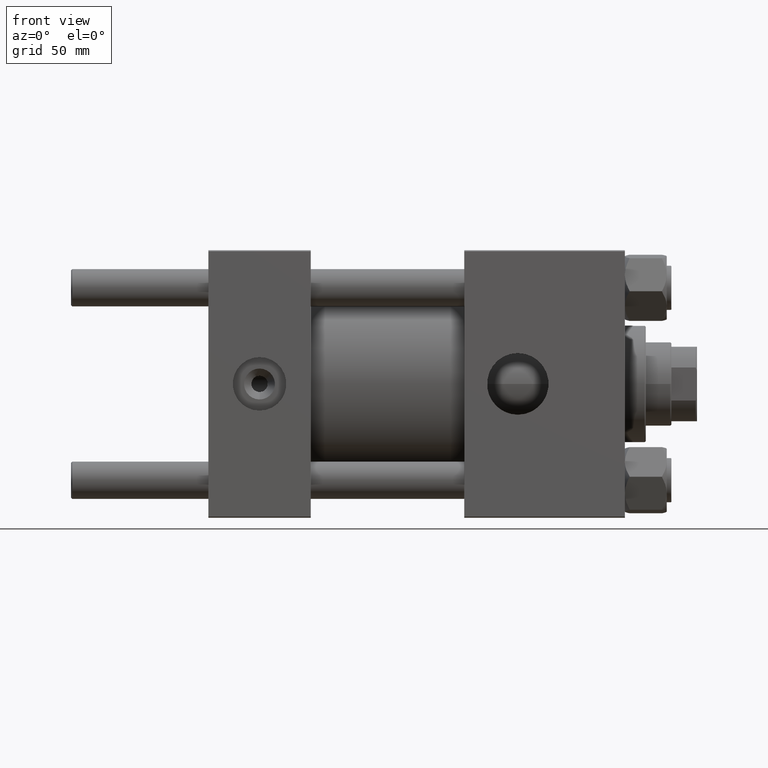
[diagram: clean part render]
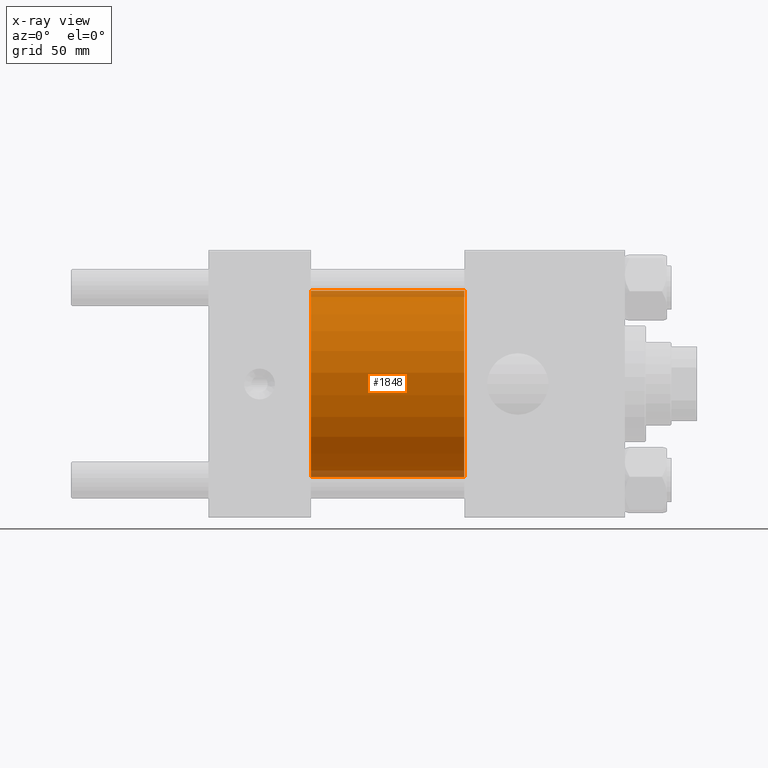
[diagram: x-ray — body ghosted, one internal face saturated and labeled with its STEP entity id]
A machine part, front view, then the same camera in x-ray: the body is ghosted and one INTERNAL B-rep face — a face not visible from any outside direction — is saturated and labeled: STEP entity #1848.
In plain terms, the highlighted cylindrical surface (partial cylindrical patch) has radius 40 mm, axis along (-1, -0, -0).
Its self-contained STEP definition (entity closure, byte-faithful):
#227 = CARTESIAN_POINT ( 'NONE',  ( 110.0000000000000000, 0.000000000000000000, 0.000000000000000000 ) ) ;
#642 = CIRCLE ( 'NONE', #8003, 40.00000000000000000 ) ;
#1848 = ADVANCED_FACE ( 'NONE', ( #49670 ), #46591, .F. ) ;
#4757 = DIRECTION ( 'NONE',  ( 0.000000000000000000, 0.000000000000000000, -1.000000000000000000 ) ) ;
#5001 = DIRECTION ( 'NONE',  ( 1.000000000000000000, 0.000000000000000000, 0.000000000000000000 ) ) ;
#5867 = VERTEX_POINT ( 'NONE', #40716 ) ;
#7307 = DIRECTION ( 'NONE',  ( 0.000000000000000000, 0.000000000000000000, 1.000000000000000000 ) ) ;
#7407 = CARTESIAN_POINT ( 'NONE',  ( 110.0000000000000000, 4.898587196589413026E-15, -40.00000000000000000 ) ) ;
#8003 = AXIS2_PLACEMENT_3D ( 'NONE', #20572, #5001, #4757 ) ;
#10578 = EDGE_CURVE ( 'NONE', #40922, #12291, #11982, .T. ) ;
#11122 = DIRECTION ( 'NONE',  ( -1.000000000000000000, -0.000000000000000000, -0.000000000000000000 ) ) ;
#11982 = LINE ( 'NONE', #7407, #17510 ) ;
#12291 = VERTEX_POINT ( 'NONE', #14807 ) ;
#12353 = AXIS2_PLACEMENT_3D ( 'NONE', #14701, #19017, #7307 ) ;
#13787 = EDGE_LOOP ( 'NONE', ( #39507, #44516, #27401, #42676 ) ) ;
#14701 = CARTESIAN_POINT ( 'NONE',  ( 110.0000000000000000, 0.000000000000000000, 0.000000000000000000 ) ) ;
#14807 = CARTESIAN_POINT ( 'NONE',  ( 44.00000000000000000, 4.898587196589413026E-15, -40.00000000000000000 ) ) ;
#15705 = LINE ( 'NONE', #42762, #22436 ) ;
#15787 = DIRECTION ( 'NONE',  ( 1.000000000000000000, 0.000000000000000000, 0.000000000000000000 ) ) ;
#16047 = CARTESIAN_POINT ( 'NONE',  ( 110.0000000000000000, 4.898587196589413026E-15, -40.00000000000000000 ) ) ;
#17510 = VECTOR ( 'NONE', #42612, 1000.000000000000000 ) ;
#19017 = DIRECTION ( 'NONE',  ( -1.000000000000000000, -0.000000000000000000, -0.000000000000000000 ) ) ;
#20572 = CARTESIAN_POINT ( 'NONE',  ( 44.00000000000000000, 0.000000000000000000, 0.000000000000000000 ) ) ;
#21833 = VERTEX_POINT ( 'NONE', #26510 ) ;
#22436 = VECTOR ( 'NONE', #11122, 1000.000000000000000 ) ;
#23603 = CIRCLE ( 'NONE', #35827, 40.00000000000000000 ) ;
#26510 = CARTESIAN_POINT ( 'NONE',  ( 44.00000000000000000, 0.000000000000000000, 40.00000000000000000 ) ) ;
#27401 = ORIENTED_EDGE ( 'NONE', *, *, #40238, .F. ) ;
#29035 = DIRECTION ( 'NONE',  ( 0.000000000000000000, 0.000000000000000000, -1.000000000000000000 ) ) ;
#29631 = EDGE_CURVE ( 'NONE', #5867, #21833, #15705, .T. ) ;
#35827 = AXIS2_PLACEMENT_3D ( 'NONE', #227, #15787, #29035 ) ;
#39507 = ORIENTED_EDGE ( 'NONE', *, *, #43304, .T. ) ;
#40238 = EDGE_CURVE ( 'NONE', #21833, #12291, #642, .T. ) ;
#40716 = CARTESIAN_POINT ( 'NONE',  ( 110.0000000000000000, 0.000000000000000000, 40.00000000000000000 ) ) ;
#40922 = VERTEX_POINT ( 'NONE', #16047 ) ;
#42612 = DIRECTION ( 'NONE',  ( -1.000000000000000000, -0.000000000000000000, -0.000000000000000000 ) ) ;
#42676 = ORIENTED_EDGE ( 'NONE', *, *, #29631, .F. ) ;
#42762 = CARTESIAN_POINT ( 'NONE',  ( 110.0000000000000000, 0.000000000000000000, 40.00000000000000000 ) ) ;
#43304 = EDGE_CURVE ( 'NONE', #5867, #40922, #23603, .T. ) ;
#44516 = ORIENTED_EDGE ( 'NONE', *, *, #10578, .T. ) ;
#46591 = CYLINDRICAL_SURFACE ( 'NONE', #12353, 40.00000000000000000 ) ;
#49670 = FACE_OUTER_BOUND ( 'NONE', #13787, .T. ) ;